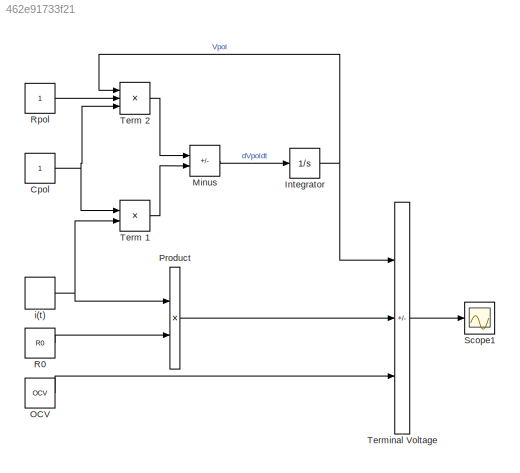
MODEL slx_462e91733f21
KIND model
CONFIG AbsTol = auto
CONFIG EnableMultiTasking = off
CONFIG FixedStep = auto
CONFIG MaxStep = auto
CONFIG MinStep = auto
CONFIG RelTol = 1e-3
CONFIG SampleTimeConstraint = Unconstrained
CONFIG SolverName = VariableStepAuto
CONFIG StartTime = 0.0
CONFIG StopTime = 100
BLOCK [Constant] Cpol
BLOCK [Integrator] Integrator
BLOCK [Sum] Minus
  IconShape = rectangular
  Inputs = -+
BLOCK [Constant] OCV
  Value = OCV
BLOCK [Product] Product
BLOCK [Constant] R0
  Value = R0
BLOCK [Constant] Rpol
BLOCK [Scope] Scope1
  Floating = off
  NumInputPorts = 1
  ScopeSpecificationString = Simulink.scopes.TimeScopeBlockCfg('CurrentConfiguration', extmgr.ConfigurationSet(extmgr.Configuration('Core','General UI',true),extmgr.Configuration('Core','Source UI',true),extmgr.Configuration('Sources','WiredSimulink',true,'DataLoggingVariableName','ScopeData1'),extmgr.Configuration('Visuals','Time Domain',true,'SerializedDisplays',{struct('MinYLimReal','3.30645','MaxYLimReal','3.65362','YLabe...<+1491ch>
BLOCK [Product] Term 1
  Inputs = **
BLOCK [Product] Term 2
  Inputs = ***
BLOCK [Sum] Terminal Voltage
  IconShape = rectangular
  Inputs = --+
BLOCK [DiscretePulseGenerator] i(t)
  Period = 10
  PhaseDelay = 2
  PulseType = Time based
  PulseWidth = 30
NET Cpol:1 -> Term 1:1, Term 2:3
NET Integrator:1 -> Term 2:1, Terminal Voltage:1
LINE Minus:1 -> Integrator:1
LINE OCV:1 -> Terminal Voltage:3
LINE Product:1 -> Terminal Voltage:2
LINE R0:1 -> Product:2
LINE Rpol:1 -> Term 2:2
LINE Term 1:1 -> Minus:2
LINE Term 2:1 -> Minus:1
LINE Terminal Voltage:1 -> Scope1:1
NET i(t):1 -> Product:1, Term 1:2
note: NET lines group one-source signal fan-out (src -> all destinations, sorted); 1:1 wires keep LINE
